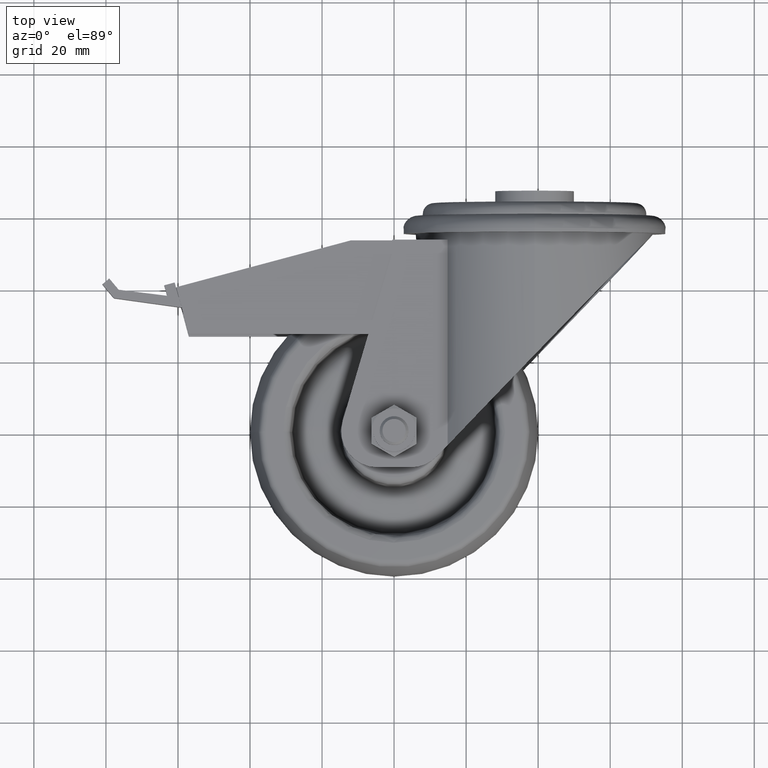
[diagram: clean part render]
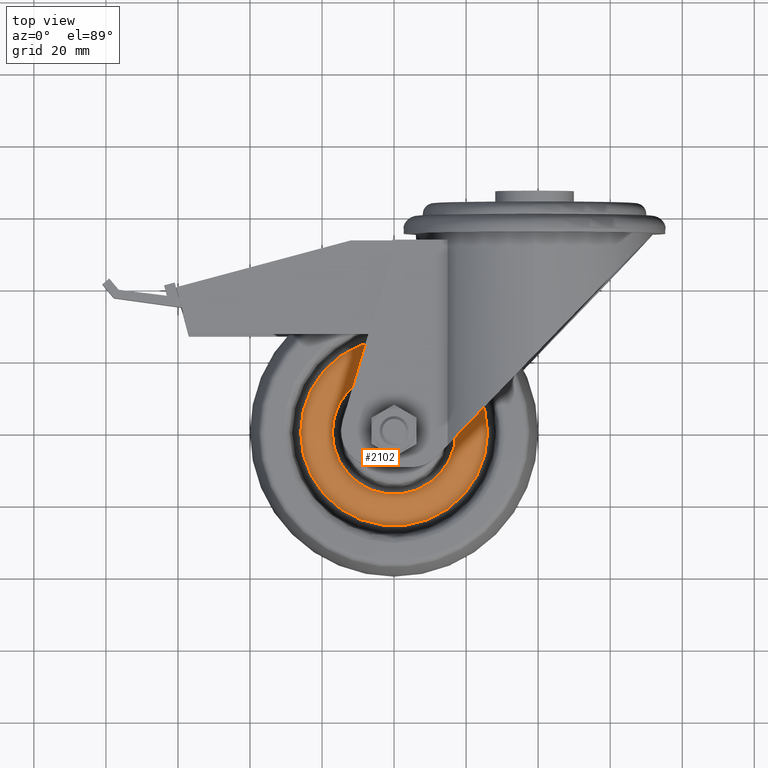
[diagram: same view with one face highlighted and labeled with its STEP entity id]
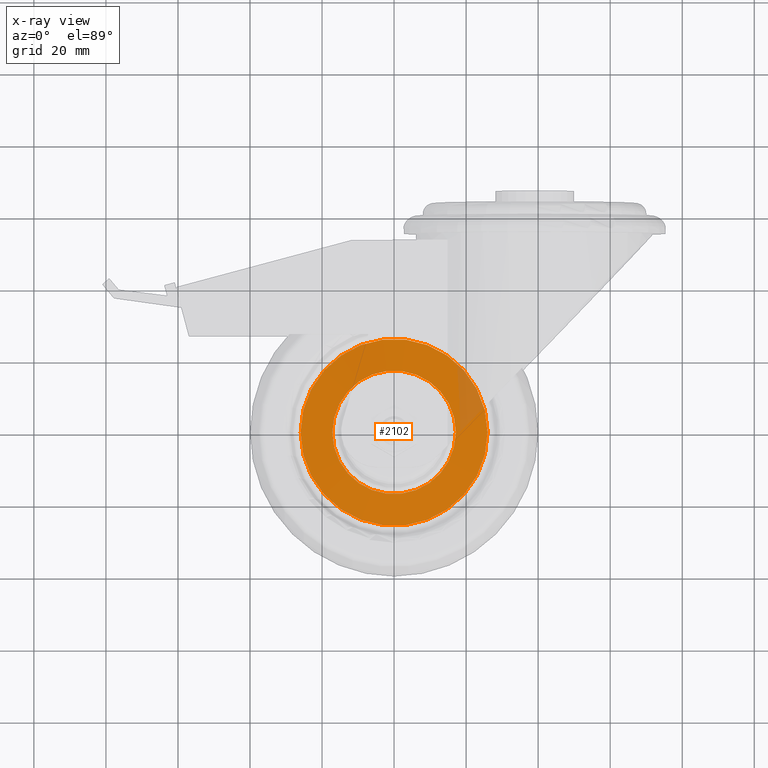
[diagram: x-ray of the same camera — body ghosted, the highlighted face saturated]
A machine part, top view. The second image highlights one B-rep face of the part: STEP entity #2102.
The next image is the same camera in x-ray: the body ghosted, the highlighted face saturated — about 6% of this face is hidden behind the body in this view.
In plain terms, the highlighted conical surface has half-angle 85 deg.
Its self-contained STEP definition (entity closure, byte-faithful):
#98=CONICAL_SURFACE('',#2427,17.1432501746245,1.48352986419518);
#346=FACE_OUTER_BOUND('',#492,.T.);
#492=EDGE_LOOP('',(#1901,#1902,#1903,#1904,#1905,#1906));
#588=CIRCLE('',#2425,17.1432501746245);
#589=CIRCLE('',#2426,17.1432501746245);
#590=CIRCLE('',#2428,25.9407881563672);
#591=CIRCLE('',#2429,25.9407881563672);
#755=LINE('',#3752,#892);
#892=VECTOR('',#3011,17.1432501746245);
#1061=VERTEX_POINT('',#3742);
#1062=VERTEX_POINT('',#3744);
#1063=VERTEX_POINT('',#3748);
#1064=VERTEX_POINT('',#3749);
#1343=EDGE_CURVE('',#1061,#1062,#588,.T.);
#1344=EDGE_CURVE('',#1062,#1061,#589,.T.);
#1345=EDGE_CURVE('',#1063,#1064,#590,.T.);
#1346=EDGE_CURVE('',#1064,#1063,#591,.T.);
#1347=EDGE_CURVE('',#1063,#1062,#755,.T.);
#1901=ORIENTED_EDGE('',*,*,#1345,.T.);
#1902=ORIENTED_EDGE('',*,*,#1346,.T.);
#1903=ORIENTED_EDGE('',*,*,#1347,.T.);
#1904=ORIENTED_EDGE('',*,*,#1343,.F.);
#1905=ORIENTED_EDGE('',*,*,#1344,.F.);
#1906=ORIENTED_EDGE('',*,*,#1347,.F.);
#2102=ADVANCED_FACE('',(#346),#98,.T.);
#2425=AXIS2_PLACEMENT_3D('',#3745,#3001,#3002);
#2426=AXIS2_PLACEMENT_3D('',#3746,#3003,#3004);
#2427=AXIS2_PLACEMENT_3D('',#3747,#3005,#3006);
#2428=AXIS2_PLACEMENT_3D('',#3750,#3007,#3008);
#2429=AXIS2_PLACEMENT_3D('',#3751,#3009,#3010);
#3001=DIRECTION('center_axis',(0.,0.,1.));
#3002=DIRECTION('ref_axis',(1.,0.,0.));
#3003=DIRECTION('center_axis',(0.,0.,1.));
#3004=DIRECTION('ref_axis',(1.,0.,0.));
#3005=DIRECTION('center_axis',(0.,0.,-1.));
#3006=DIRECTION('ref_axis',(-1.,0.,0.));
#3007=DIRECTION('center_axis',(0.,0.,1.));
#3008=DIRECTION('ref_axis',(1.,0.,0.));
#3009=DIRECTION('center_axis',(0.,0.,1.));
#3010=DIRECTION('ref_axis',(1.,0.,0.));
#3011=DIRECTION('',(-0.996194698091745,1.21998664834562E-16,0.0871557427476583));
#3742=CARTESIAN_POINT('',(-17.1432501746245,-2.09944264533362E-15,3.75015995373153));
#3744=CARTESIAN_POINT('',(17.1432501746245,0.,3.75015995373153));
#3745=CARTESIAN_POINT('Origin',(0.,0.,3.75015995373153));
#3746=CARTESIAN_POINT('Origin',(0.,0.,3.75015995373153));
#3747=CARTESIAN_POINT('Origin',(0.,0.,3.75015995373153));
#3748=CARTESIAN_POINT('',(25.9407881563672,0.,2.98047511339031));
#3749=CARTESIAN_POINT('',(-25.9407881563672,-3.17683031830547E-15,2.98047511339031));
#3750=CARTESIAN_POINT('Origin',(0.,0.,2.98047511339031));
#3751=CARTESIAN_POINT('Origin',(0.,0.,2.98047511339031));
#3752=CARTESIAN_POINT('',(17.1432501746245,-2.09944264533362E-15,3.75015995373153));